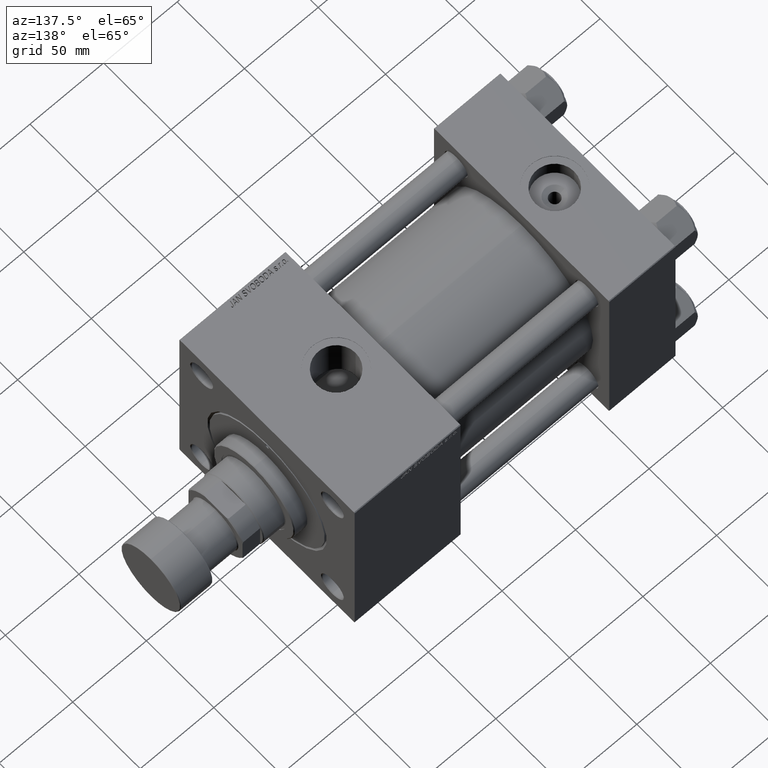
[diagram: clean part render]
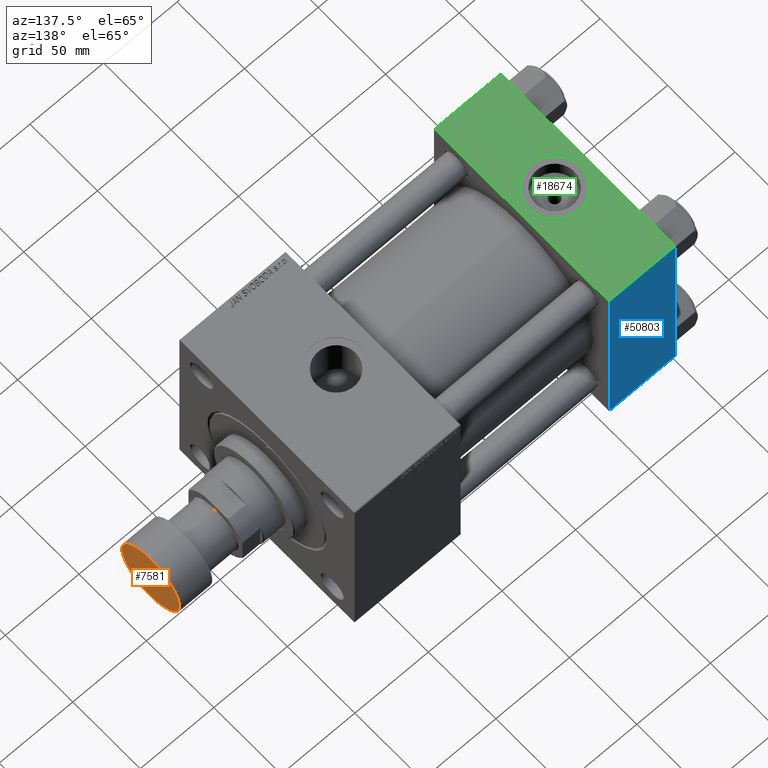
[diagram: same view with three faces highlighted in distinct colors, each labeled with its STEP entity id]
A machine part, auxiliary view with three faces highlighted in distinct colors.
Their STEP definitions:

[orange] entity #7581 — the highlighted planar face has unit normal (1, 0, 0).
#347 = DIRECTION ( 'NONE',  ( 1.000000000000000000, 0.000000000000000000, 0.000000000000000000 ) ) ;
#557 = EDGE_LOOP ( 'NONE', ( #26009, #15274 ) ) ;
#841 = CARTESIAN_POINT ( 'NONE',  ( 0.000000000000000000, 0.000000000000000000, 0.000000000000000000 ) ) ;
#3950 = DIRECTION ( 'NONE',  ( 0.000000000000000000, 0.000000000000000000, 1.000000000000000000 ) ) ;
#4904 = CIRCLE ( 'NONE', #11501, 21.50000000000000000 ) ;
#5547 = CIRCLE ( 'NONE', #39500, 21.50000000000000000 ) ;
#7581 = ADVANCED_FACE ( 'NONE', ( #17116 ), #9836, .T. ) ;
#9836 = PLANE ( 'NONE',  #26771 ) ;
#11501 = AXIS2_PLACEMENT_3D ( 'NONE', #841, #3950, #36098 ) ;
#12498 = DIRECTION ( 'NONE',  ( 0.000000000000000000, 0.000000000000000000, 1.000000000000000000 ) ) ;
#15274 = ORIENTED_EDGE ( 'NONE', *, *, #38967, .T. ) ;
#17116 = FACE_OUTER_BOUND ( 'NONE', #557, .T. ) ;
#18618 = CARTESIAN_POINT ( 'NONE',  ( 21.50000000000000000, 0.000000000000000000, 0.000000000000000000 ) ) ;
#19102 = EDGE_CURVE ( 'NONE', #19465, #31453, #5547, .T. ) ;
#19465 = VERTEX_POINT ( 'NONE', #18618 ) ;
#21769 = DIRECTION ( 'NONE',  ( 0.000000000000000000, 0.000000000000000000, 1.000000000000000000 ) ) ;
#26009 = ORIENTED_EDGE ( 'NONE', *, *, #19102, .T. ) ;
#26771 = AXIS2_PLACEMENT_3D ( 'NONE', #32952, #21769, #33704 ) ;
#31453 = VERTEX_POINT ( 'NONE', #41407 ) ;
#32952 = CARTESIAN_POINT ( 'NONE',  ( 0.000000000000000000, 0.000000000000000000, 0.000000000000000000 ) ) ;
#33704 = DIRECTION ( 'NONE',  ( 1.000000000000000000, 0.000000000000000000, -0.000000000000000000 ) ) ;
#36098 = DIRECTION ( 'NONE',  ( 1.000000000000000000, 0.000000000000000000, 0.000000000000000000 ) ) ;
#38967 = EDGE_CURVE ( 'NONE', #31453, #19465, #4904, .T. ) ;
#39500 = AXIS2_PLACEMENT_3D ( 'NONE', #48015, #12498, #347 ) ;
#41407 = CARTESIAN_POINT ( 'NONE',  ( -21.50000000000000000, 2.663606788145493022E-15, 0.000000000000000000 ) ) ;
#48015 = CARTESIAN_POINT ( 'NONE',  ( 0.000000000000000000, 0.000000000000000000, 0.000000000000000000 ) ) ;

[blue] entity #50803 — the highlighted planar face has unit normal (0, 1, 0).
#662 = DIRECTION ( 'NONE',  ( -1.000000000000000000, 0.000000000000000000, 0.000000000000000000 ) ) ;
#1635 = VERTEX_POINT ( 'NONE', #9538 ) ;
#3773 = CARTESIAN_POINT ( 'NONE',  ( 45.00000000000000000, 65.00000000000000000, -64.49999999999995737 ) ) ;
#6709 = ORIENTED_EDGE ( 'NONE', *, *, #13449, .T. ) ;
#6793 = DIRECTION ( 'NONE',  ( 1.000000000000000000, 0.000000000000000000, 0.000000000000000000 ) ) ;
#8286 = CARTESIAN_POINT ( 'NONE',  ( 0.000000000000000000, 65.00000000000000000, 65.00000000000001421 ) ) ;
#8761 = VECTOR ( 'NONE', #662, 1000.000000000000000 ) ;
#8762 = CARTESIAN_POINT ( 'NONE',  ( 45.00000000000000000, 65.00000000000000000, -64.49999999999995737 ) ) ;
#9538 = CARTESIAN_POINT ( 'NONE',  ( 45.00000000000000000, 65.00000000000000000, 64.49999999999998579 ) ) ;
#13449 = EDGE_CURVE ( 'NONE', #47646, #28848, #19560, .T. ) ;
#15742 = VECTOR ( 'NONE', #20724, 1000.000000000000000 ) ;
#16716 = CARTESIAN_POINT ( 'NONE',  ( 0.000000000000000000, 65.00000000000000000, 64.49999999999998579 ) ) ;
#16832 = LINE ( 'NONE', #8286, #15742 ) ;
#17288 = CARTESIAN_POINT ( 'NONE',  ( 45.00000000000000000, 65.00000000000000000, 65.00000000000001421 ) ) ;
#18959 = LINE ( 'NONE', #30378, #44894 ) ;
#19560 = LINE ( 'NONE', #3773, #8761 ) ;
#20724 = DIRECTION ( 'NONE',  ( 0.000000000000000000, 0.000000000000000000, -1.000000000000000000 ) ) ;
#21486 = VECTOR ( 'NONE', #42714, 1000.000000000000000 ) ;
#21952 = FACE_OUTER_BOUND ( 'NONE', #31829, .T. ) ;
#22746 = CARTESIAN_POINT ( 'NONE',  ( 45.00000000000000000, 65.00000000000000000, 65.00000000000001421 ) ) ;
#24768 = ORIENTED_EDGE ( 'NONE', *, *, #41258, .T. ) ;
#26130 = VERTEX_POINT ( 'NONE', #16716 ) ;
#28543 = CARTESIAN_POINT ( 'NONE',  ( 0.000000000000000000, 65.00000000000000000, -64.49999999999995737 ) ) ;
#28848 = VERTEX_POINT ( 'NONE', #28543 ) ;
#29461 = PLANE ( 'NONE',  #39955 ) ;
#29704 = ORIENTED_EDGE ( 'NONE', *, *, #41087, .F. ) ;
#30378 = CARTESIAN_POINT ( 'NONE',  ( 45.00000000000000000, 65.00000000000000000, 64.49999999999998579 ) ) ;
#31829 = EDGE_LOOP ( 'NONE', ( #24768, #6709, #29704, #40314 ) ) ;
#32093 = EDGE_CURVE ( 'NONE', #26130, #1635, #18959, .T. ) ;
#37776 = DIRECTION ( 'NONE',  ( 0.000000000000000000, -0.000000000000000000, 1.000000000000000000 ) ) ;
#39096 = LINE ( 'NONE', #22746, #21486 ) ;
#39955 = AXIS2_PLACEMENT_3D ( 'NONE', #17288, #41663, #37776 ) ;
#40314 = ORIENTED_EDGE ( 'NONE', *, *, #32093, .T. ) ;
#41087 = EDGE_CURVE ( 'NONE', #26130, #28848, #16832, .T. ) ;
#41258 = EDGE_CURVE ( 'NONE', #1635, #47646, #39096, .T. ) ;
#41663 = DIRECTION ( 'NONE',  ( -0.000000000000000000, 1.000000000000000000, 0.000000000000000000 ) ) ;
#42714 = DIRECTION ( 'NONE',  ( 0.000000000000000000, 0.000000000000000000, -1.000000000000000000 ) ) ;
#44894 = VECTOR ( 'NONE', #6793, 1000.000000000000000 ) ;
#47646 = VERTEX_POINT ( 'NONE', #8762 ) ;
#50803 = ADVANCED_FACE ( 'NONE', ( #21952 ), #29461, .T. ) ;

[green] entity #18674 — the highlighted planar face has unit normal (0, 0, -1).
#1175 = VERTEX_POINT ( 'NONE', #27005 ) ;
#1354 = CARTESIAN_POINT ( 'NONE',  ( 45.00000000000000000, -64.49999999999997158, 65.00000000000000000 ) ) ;
#2477 = ORIENTED_EDGE ( 'NONE', *, *, #16801, .F. ) ;
#3066 = CARTESIAN_POINT ( 'NONE',  ( 22.50000000000000000, -8.673617379884035472E-15, 65.00000000000000000 ) ) ;
#3836 = VERTEX_POINT ( 'NONE', #16197 ) ;
#4669 = CIRCLE ( 'NONE', #34443, 17.50000000000000000 ) ;
#4908 = CARTESIAN_POINT ( 'NONE',  ( 45.00000000000000000, 65.00000000000000000, 65.00000000000001421 ) ) ;
#5577 = DIRECTION ( 'NONE',  ( 0.000000000000000000, -1.000000000000000000, -1.067522139062650425E-16 ) ) ;
#6109 = FACE_BOUND ( 'NONE', #33392, .T. ) ;
#8777 = FACE_OUTER_BOUND ( 'NONE', #29896, .T. ) ;
#9805 = CIRCLE ( 'NONE', #42957, 17.50000000000000000 ) ;
#9919 = CARTESIAN_POINT ( 'NONE',  ( 0.000000000000000000, 65.00000000000000000, 65.00000000000001421 ) ) ;
#10208 = CARTESIAN_POINT ( 'NONE',  ( 0.000000000000000000, 64.49999999999997158, 65.00000000000001421 ) ) ;
#10265 = ORIENTED_EDGE ( 'NONE', *, *, #22116, .T. ) ;
#10431 = DIRECTION ( 'NONE',  ( 0.000000000000000000, -1.000000000000000000, -1.067522139062650425E-16 ) ) ;
#11341 = VERTEX_POINT ( 'NONE', #23760 ) ;
#11727 = VECTOR ( 'NONE', #5577, 1000.000000000000000 ) ;
#13411 = ORIENTED_EDGE ( 'NONE', *, *, #42486, .T. ) ;
#13977 = VERTEX_POINT ( 'NONE', #32730 ) ;
#14202 = CARTESIAN_POINT ( 'NONE',  ( 45.00000000000000000, 64.49999999999997158, 65.00000000000001421 ) ) ;
#16197 = CARTESIAN_POINT ( 'NONE',  ( 40.00000000000000000, -8.673617379884035472E-15, 65.00000000000000000 ) ) ;
#16801 = EDGE_CURVE ( 'NONE', #3836, #1175, #4669, .T. ) ;
#16822 = DIRECTION ( 'NONE',  ( 0.000000000000000000, 1.067522139062650548E-16, -1.000000000000000000 ) ) ;
#17239 = DIRECTION ( 'NONE',  ( 1.000000000000000000, 0.000000000000000000, 0.000000000000000000 ) ) ;
#18674 = ADVANCED_FACE ( 'NONE', ( #6109, #8777 ), #32397, .F. ) ;
#20141 = VERTEX_POINT ( 'NONE', #43781 ) ;
#20388 = CARTESIAN_POINT ( 'NONE',  ( 45.00000000000000000, 65.00000000000000000, 65.00000000000001421 ) ) ;
#21130 = CARTESIAN_POINT ( 'NONE',  ( 22.50000000000000000, -8.673617379884035472E-15, 65.00000000000000000 ) ) ;
#21448 = VECTOR ( 'NONE', #22134, 1000.000000000000000 ) ;
#22116 = EDGE_CURVE ( 'NONE', #13977, #20141, #24937, .T. ) ;
#22134 = DIRECTION ( 'NONE',  ( -1.000000000000000000, 0.000000000000000000, 0.000000000000000000 ) ) ;
#22329 = VECTOR ( 'NONE', #10431, 1000.000000000000000 ) ;
#23422 = EDGE_CURVE ( 'NONE', #1175, #3836, #9805, .T. ) ;
#23760 = CARTESIAN_POINT ( 'NONE',  ( 0.000000000000000000, 64.49999999999997158, 65.00000000000001421 ) ) ;
#24350 = DIRECTION ( 'NONE',  ( 0.000000000000000000, 1.000000000000000000, 1.067522139062650548E-16 ) ) ;
#24881 = ORIENTED_EDGE ( 'NONE', *, *, #47834, .F. ) ;
#24937 = LINE ( 'NONE', #1354, #26275 ) ;
#25320 = EDGE_CURVE ( 'NONE', #11341, #13977, #29626, .T. ) ;
#26020 = LINE ( 'NONE', #10208, #21448 ) ;
#26275 = VECTOR ( 'NONE', #29318, 1000.000000000000000 ) ;
#27005 = CARTESIAN_POINT ( 'NONE',  ( 4.999999999999997335, -6.530485481376167224E-15, 65.00000000000000000 ) ) ;
#28912 = LINE ( 'NONE', #20388, #11727 ) ;
#29318 = DIRECTION ( 'NONE',  ( 1.000000000000000000, 0.000000000000000000, 0.000000000000000000 ) ) ;
#29626 = LINE ( 'NONE', #9919, #22329 ) ;
#29896 = EDGE_LOOP ( 'NONE', ( #41606, #10265, #24881, #13411 ) ) ;
#32397 = PLANE ( 'NONE',  #50231 ) ;
#32503 = ORIENTED_EDGE ( 'NONE', *, *, #23422, .F. ) ;
#32730 = CARTESIAN_POINT ( 'NONE',  ( 0.000000000000000000, -64.49999999999997158, 65.00000000000000000 ) ) ;
#33326 = DIRECTION ( 'NONE',  ( 0.000000000000000000, 0.000000000000000000, 1.000000000000000000 ) ) ;
#33392 = EDGE_LOOP ( 'NONE', ( #2477, #32503 ) ) ;
#34443 = AXIS2_PLACEMENT_3D ( 'NONE', #21130, #33326, #17239 ) ;
#34958 = DIRECTION ( 'NONE',  ( 1.000000000000000000, 0.000000000000000000, 0.000000000000000000 ) ) ;
#41606 = ORIENTED_EDGE ( 'NONE', *, *, #25320, .T. ) ;
#42486 = EDGE_CURVE ( 'NONE', #45266, #11341, #26020, .T. ) ;
#42957 = AXIS2_PLACEMENT_3D ( 'NONE', #3066, #47639, #34958 ) ;
#43781 = CARTESIAN_POINT ( 'NONE',  ( 45.00000000000000000, -64.49999999999997158, 65.00000000000000000 ) ) ;
#45266 = VERTEX_POINT ( 'NONE', #14202 ) ;
#47639 = DIRECTION ( 'NONE',  ( 0.000000000000000000, 0.000000000000000000, 1.000000000000000000 ) ) ;
#47834 = EDGE_CURVE ( 'NONE', #45266, #20141, #28912, .T. ) ;
#50231 = AXIS2_PLACEMENT_3D ( 'NONE', #4908, #16822, #24350 ) ;